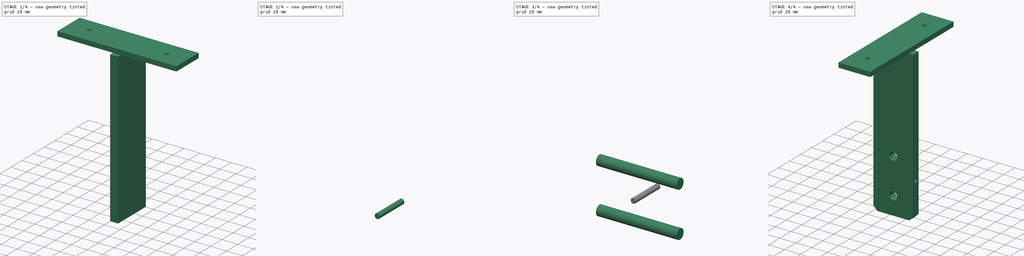
[diagram: build sequence overview — one tinted view per stage of 4, left to right]
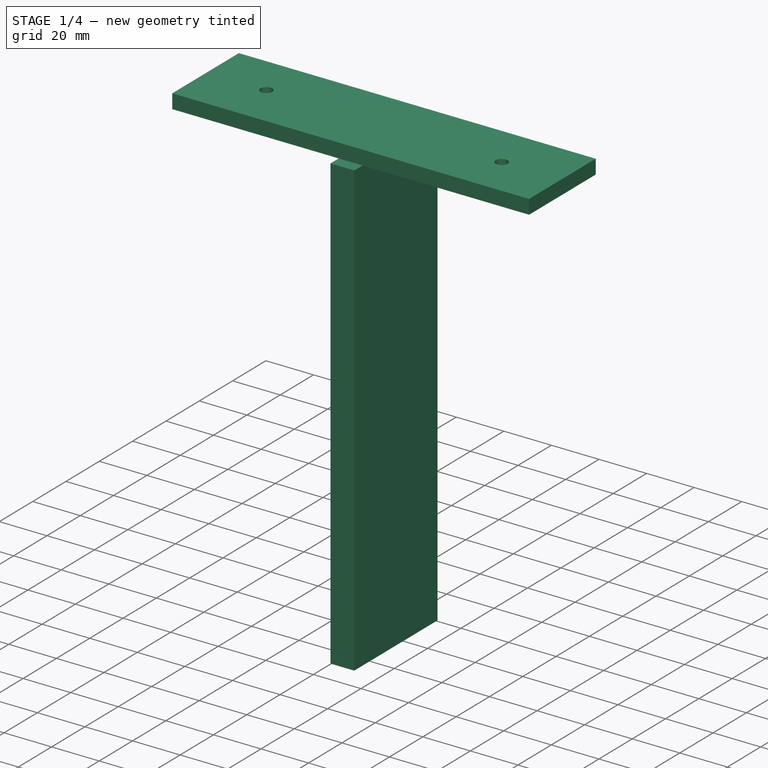
[diagram: stage 1 of 4 — iso view after this stage's code; geometry added in this stage tinted green]
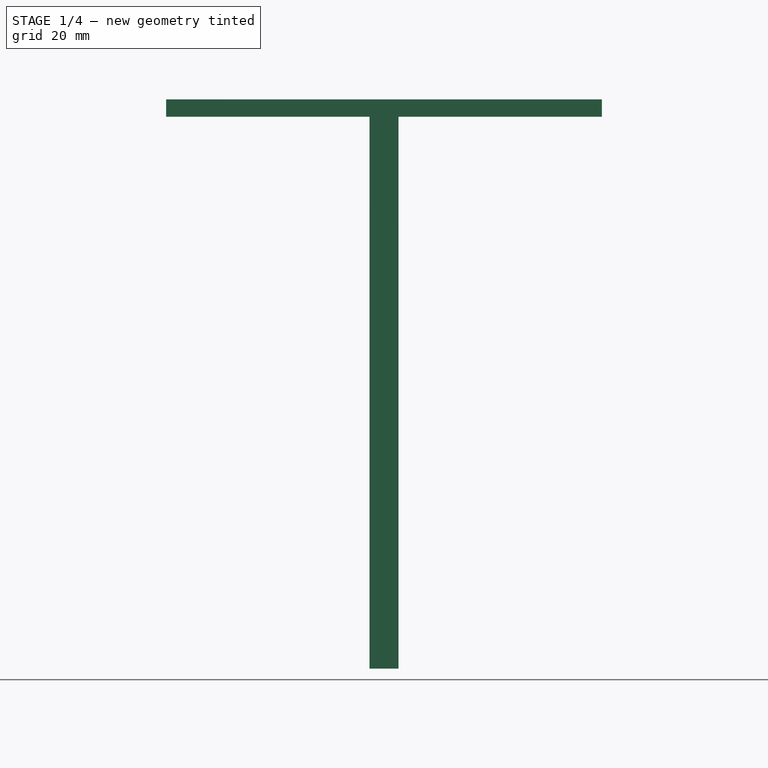
[diagram: stage 1 of 4 — front view after this stage's code; geometry added in this stage tinted green]
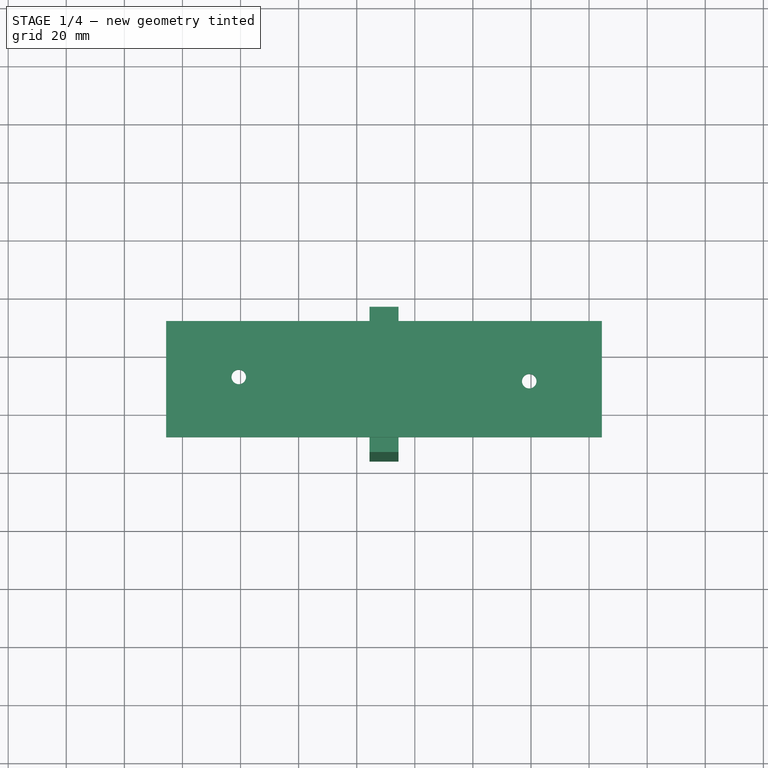
[diagram: stage 1 of 4 — top view after this stage's code; geometry added in this stage tinted green]
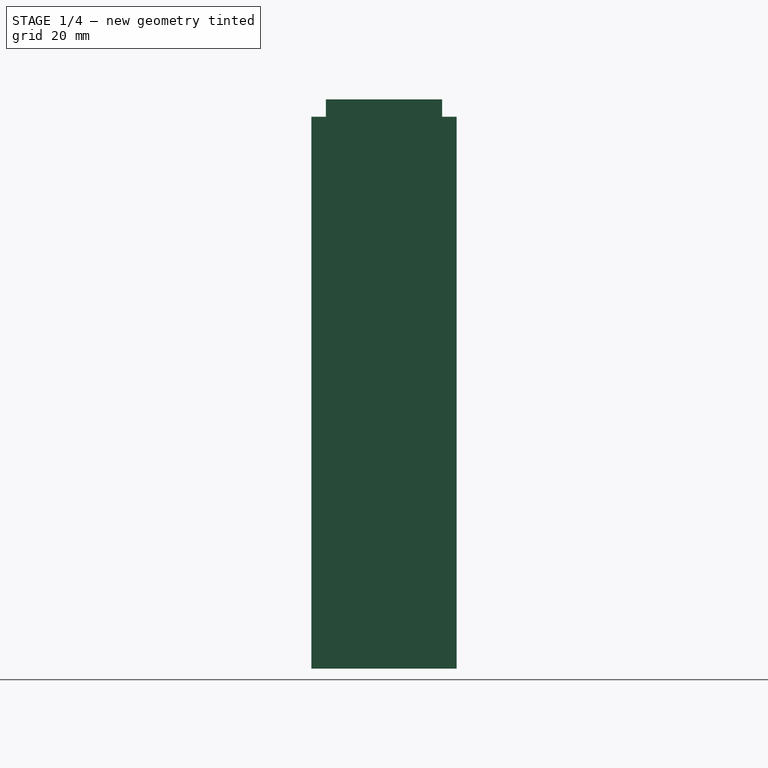
[diagram: stage 1 of 4 — right view after this stage's code; geometry added in this stage tinted green]
FCSTD DOCUMENT  (FreeCAD 0.17R11051 (Git))
Label: loft_handrail_holder
License: All rights reserved
LicenseURL: http://en.wikipedia.org/wiki/All_rights_reserved
objects: Part::Part2DObjectPython×3, Part::Extrusion×3, TechDraw::DrawProjGroupItem×3, Part::FeaturePython×2, Part::Compound×2, Part::Chamfer×1, Part::Cut×1, PartDesign::ShapeBinder×1, Sketcher::SketchObject×1, PartDesign::Pad×1, PartDesign::Body×1, TechDraw::DrawSVGTemplate×1, TechDraw::DrawProjGroup×1, TechDraw::DrawViewPart×1, TechDraw::DrawPage×1
note: 17 computed .brp shape members not serialized (recipe doc carries the construction recipe); baked Part::Feature solids carry a one-line shape summary decoded from their .brp

FEATURE [Part::Part2DObjectPython] Rectangle  # Draft 2D object (typed FeaturePython)
  ChamferSize = 0
  Columns = 1
  FilletRadius = 0
  Height = 10
  Length = 50
  MakeFace = true
  Placement = pos=(84.3902,-436,950) rot=(0.707107,0.707107,0;3.14159rad)
  Rows = 1
FEATURE [Part::Extrusion] Extrude007
  Base = -> Rectangle
  Dir = (0,0,1)
  DirMode = 0
  FaceMakerClass = Part::FaceMakerBullseye
  LengthFwd = 190
  LengthRev = 0
  Solid = false
  Symmetric = false
FEATURE [PartDesign::ShapeBinder] CopyCut003
  Placement = pos=(84.3902,-436,1140) rot=(0.707107,0.707107,0;3.14159rad)
FEATURE [Sketcher::SketchObject] Sketch
  ExternalGeometry = -> [CopyCut003]
  MapMode = 5
  Placement = pos=(84.3902,-436,1140) rot=(0,0,1;1.5708rad)
  Support = -> [CopyCut003]
  sketch-geometry (8):
    g0: LineSegment StartX=5 StartY=-80 StartZ=0 EndX=45 EndY=-80 EndZ=0
    g1: LineSegment StartX=45 StartY=-80 StartZ=0 EndX=45 EndY=70 EndZ=0
    g2: LineSegment StartX=45 StartY=70 StartZ=0 EndX=5 EndY=70 EndZ=0
    g3: LineSegment StartX=5 StartY=70 StartZ=0 EndX=5 EndY=-80 EndZ=0
    g4: LineSegment [constr] StartX=25 StartY=-5 StartZ=0 EndX=50 EndY=-5 EndZ=0
    g5: LineSegment [constr] StartX=25 StartY=-5 StartZ=0 EndX=0 EndY=-5 EndZ=0
    g6: Circle CenterX=25.7359 CenterY=45 CenterZ=0 NormalX=0 NormalY=0 NormalZ=1 Radius=2.5
    g7: Circle CenterX=24.2641 CenterY=-55 CenterZ=0 NormalX=0 NormalY=0 NormalZ=1 Radius=2.5
  constraints (22):
    c: Coincident(g0,g1)
    c: Coincident(g1,g2)
    c: Coincident(g2,g3)
    c: Coincident(g3,g0)
    c: Horizontal(g0)
    c: Horizontal(g2)
    c: Vertical(g1)
    c: Vertical(g3)
    c: DistanceY(g3,g3) = 150
    c: DistanceX(g2,g2) = 40
    c: PointOnObject(g4,g-6)
    c: Symmetric(g-6,g-6,g4)
    c: Symmetric(g0,g1,g4)
    c: Coincident(g5,g4)
    c: Horizontal(g5)
    c: PointOnObject(g5,g-4)
    c: Equal(g5,g4)
    c: Symmetric(g0,g2,g4)
    c: Symmetric(g6,g7,g4)
    c: Radius(g6) = 2.5
    c: Equal(g6,g7)
    c: DistanceY(g6,g1) = 25
FEATURE [PartDesign::Pad] Pad
  Length = 6
  Length2 = 100
  Placement = pos=(84.3902,-436,1140) rot=(0.707107,0.707107,0;3.14159rad)
  Profile = -> Sketch
  Type = 0
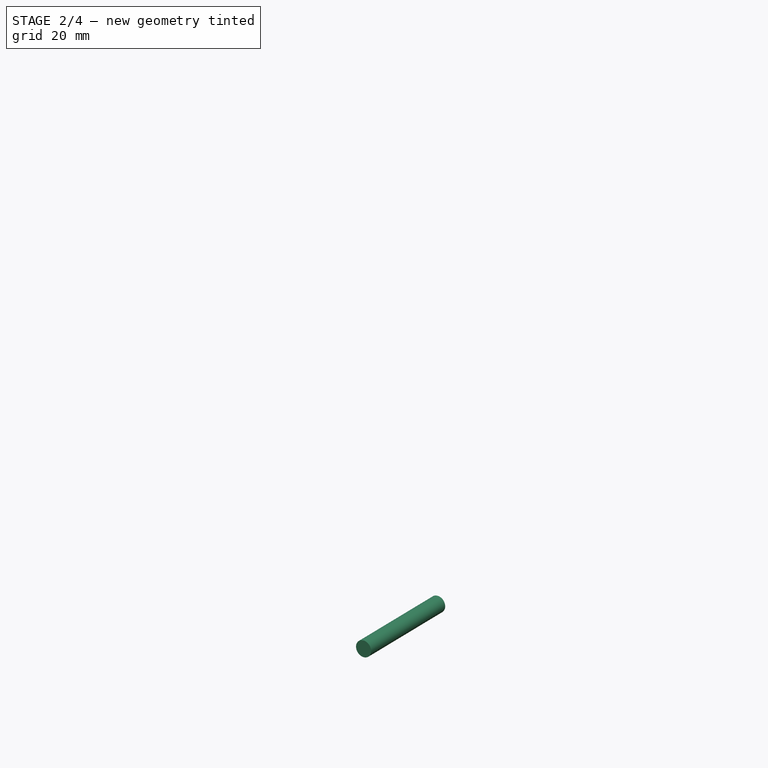
[diagram: stage 2 of 4 — iso view after this stage's code; geometry added in this stage tinted green]
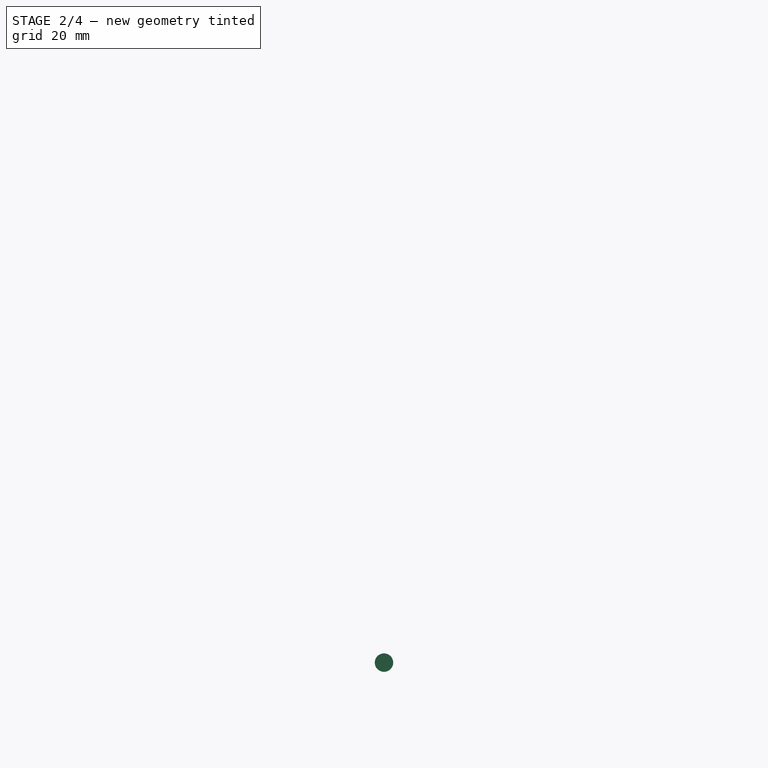
[diagram: stage 2 of 4 — front view after this stage's code; geometry added in this stage tinted green]
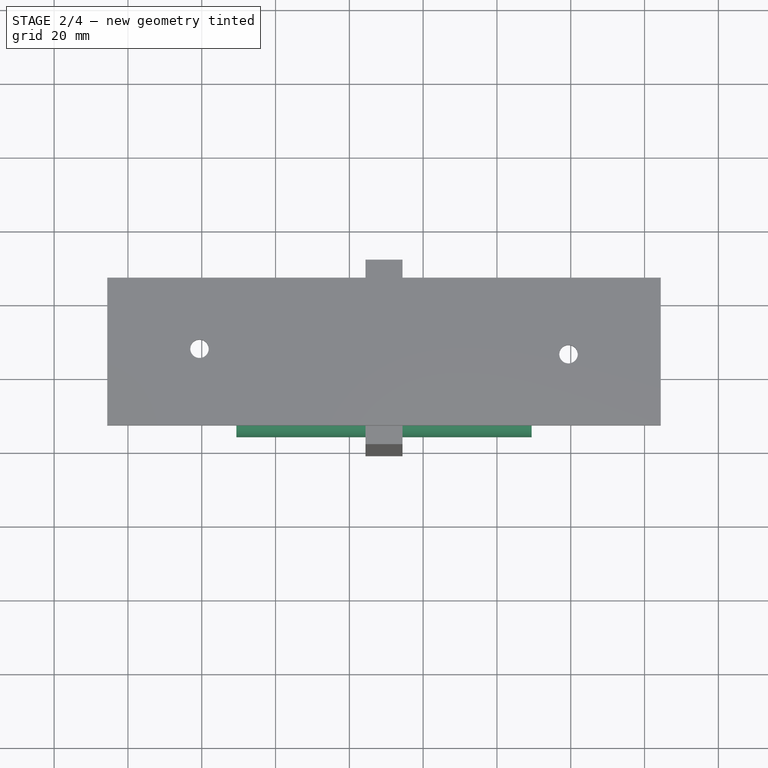
[diagram: stage 2 of 4 — top view after this stage's code; geometry added in this stage tinted green]
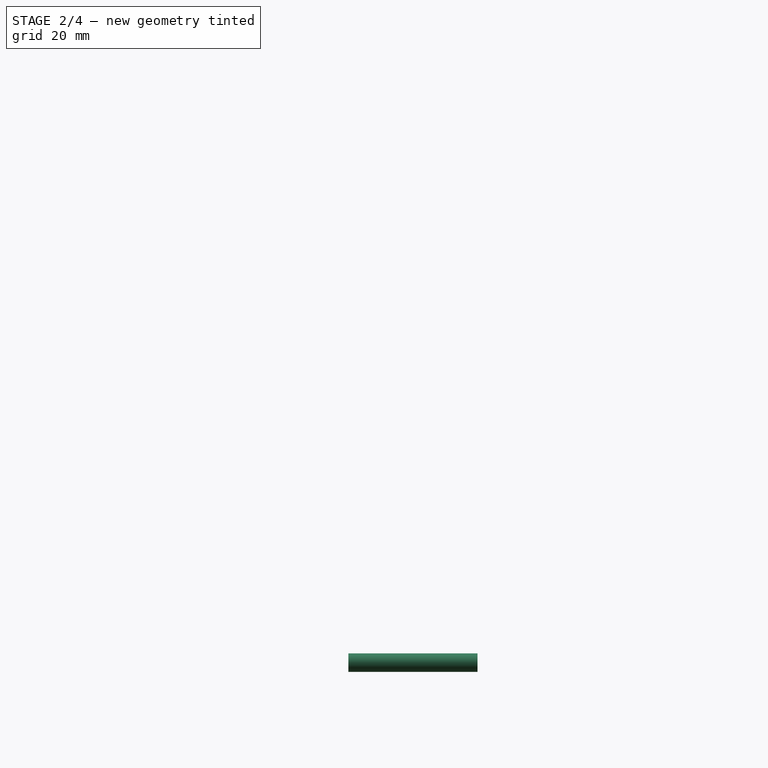
[diagram: stage 2 of 4 — right view after this stage's code; geometry added in this stage tinted green]
FEATURE [Part::Part2DObjectPython] Circle  # Draft 2D object (typed FeaturePython)
  FirstAngle = 0
  LastAngle = 0
  MakeFace = true
  Placement = pos=(64.3902,-411,100) rot=(0.57735,-0.57735,-0.57735;2.0944rad)
  Radius = 5
FEATURE [Part::Extrusion] Extrude
  Base = -> Circle
  Dir = (1,0,0)
  DirMode = 0
  FaceMakerClass = Part::FaceMakerBullseye
  LengthFwd = 80
  LengthRev = 0
  Placement = pos=(25,0,0) rot=(0,0,1;0rad)
  Solid = false
  Symmetric = true
FEATURE [Part::Part2DObjectPython] Circle003  # Draft 2D object (typed FeaturePython)
  FirstAngle = 0
  LastAngle = 0
  MakeFace = true
  Placement = pos=(89.3902,-420.3,545) rot=(1,0,0;1.5708rad)
  Radius = 2.5
FEATURE [Part::Extrusion] Extrude006
  Base = -> Circle003
  Dir = (0,1,0)
  DirMode = 0
  FaceMakerClass = Part::FaceMakerBullseye
  LengthFwd = 35
  LengthRev = 0
  Solid = false
  Symmetric = false
FEATURE [Part::FeaturePython] Array006  # Draft array (typed FeaturePython)
  Angle = 360
  ArrayType = 0
  Axis = (0,0,1)
  Base = -> Extrude006
  Center = (0,0,0)
  Fuse = false
  IntervalAxis = (0,0,0)
  IntervalX = (0,0,225)
  IntervalY = (0,0,0)
  IntervalZ = (0,0,0)
  NumberPolar = 1
  NumberX = 3
  NumberY = 0
  NumberZ = 1
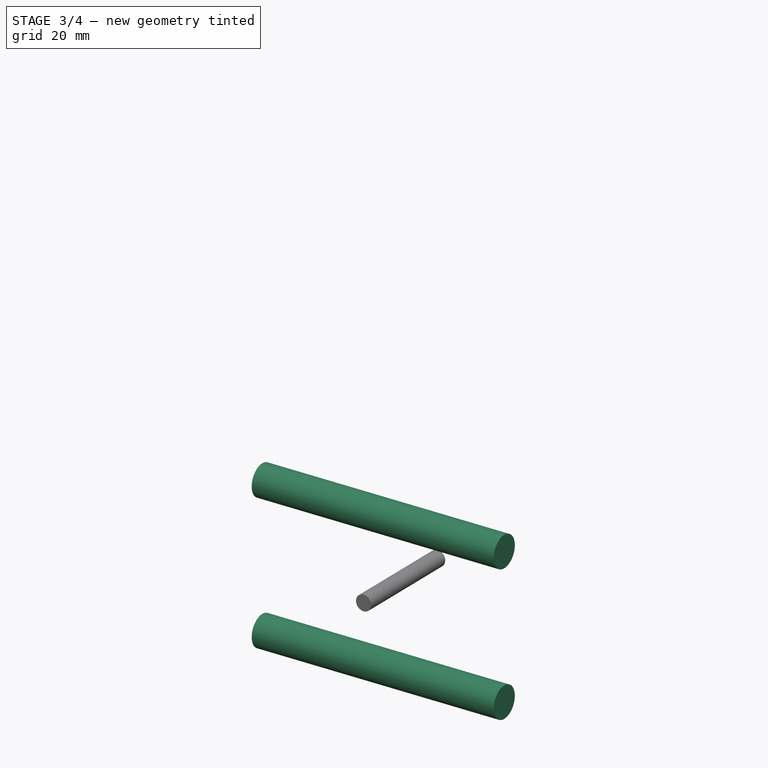
[diagram: stage 3 of 4 — iso view after this stage's code; geometry added in this stage tinted green]
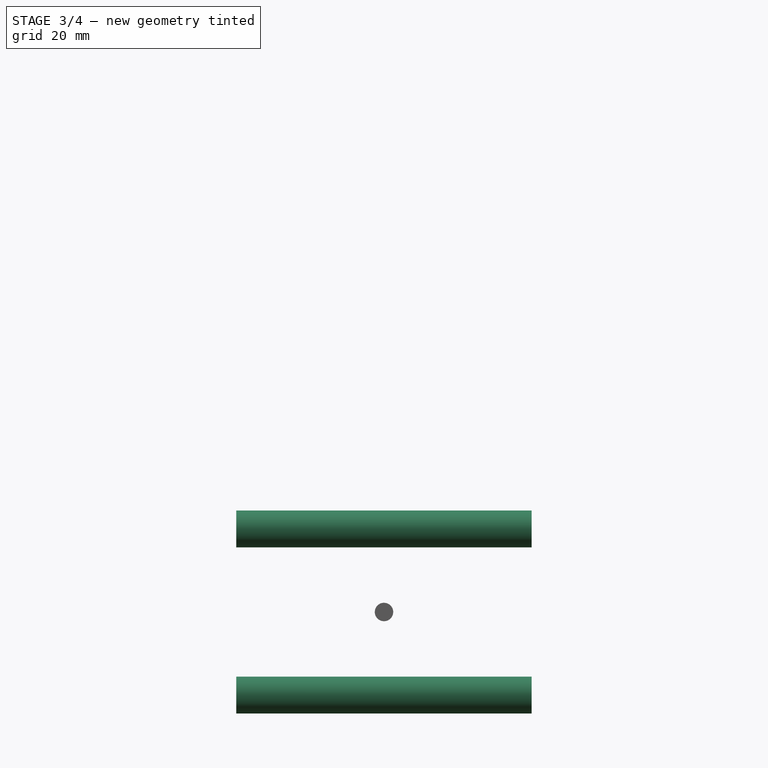
[diagram: stage 3 of 4 — front view after this stage's code; geometry added in this stage tinted green]
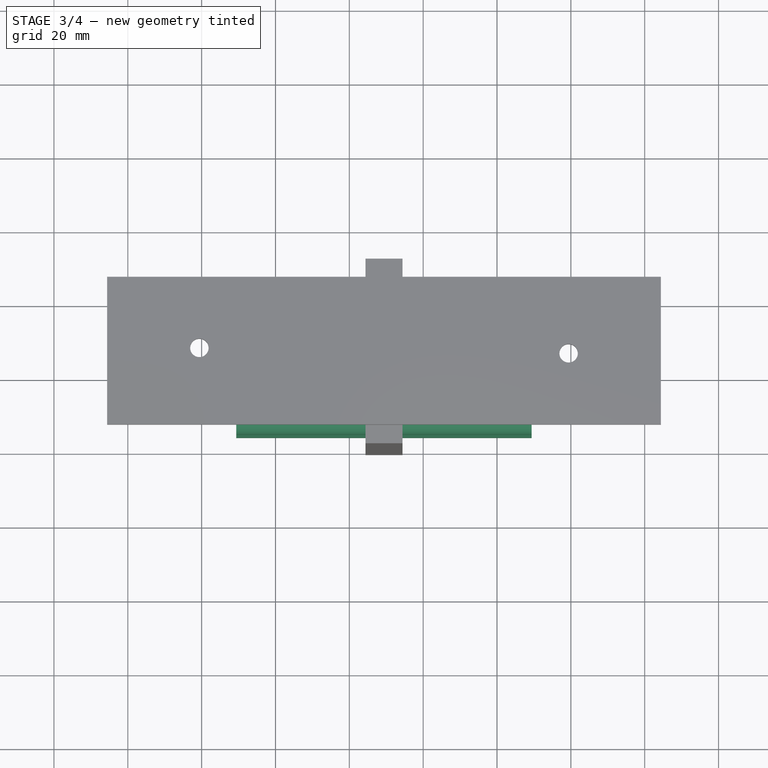
[diagram: stage 3 of 4 — top view after this stage's code; geometry added in this stage tinted green]
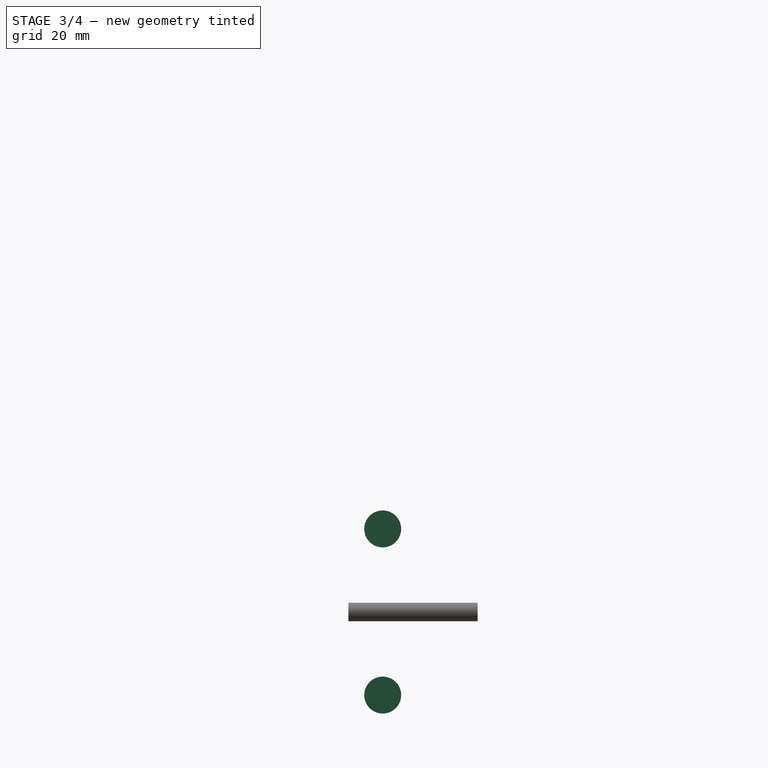
[diagram: stage 3 of 4 — right view after this stage's code; geometry added in this stage tinted green]
FEATURE [Part::FeaturePython] Array  # Draft array (typed FeaturePython)
  Angle = 360
  ArrayType = 0
  Axis = (0,0,1)
  Base = -> Extrude
  Center = (0,0,0)
  Fuse = false
  IntervalAxis = (0,0,0)
  IntervalX = (0,0,45)
  IntervalY = (0,0,225)
  IntervalZ = (0,0,0)
  NumberPolar = 1
  NumberX = 2
  NumberY = 5
  NumberZ = 1
  Placement = pos=(0,0,-27.5) rot=(0,0,1;0rad)
FEATURE [Part::Compound] Compound
  Links = -> [Array006,Array]
FEATURE [Part::Chamfer] Chamfer002
  Base = -> Extrude007
  Edges = 2 edges r=5: [Edge6,Edge11]
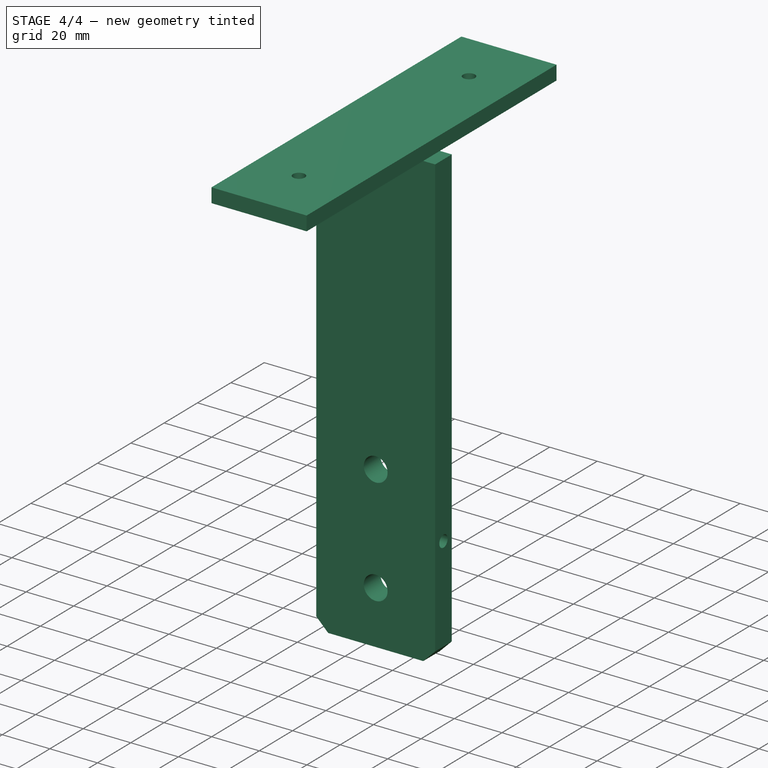
[diagram: stage 4 of 4 — iso view after this stage's code; geometry added in this stage tinted green]
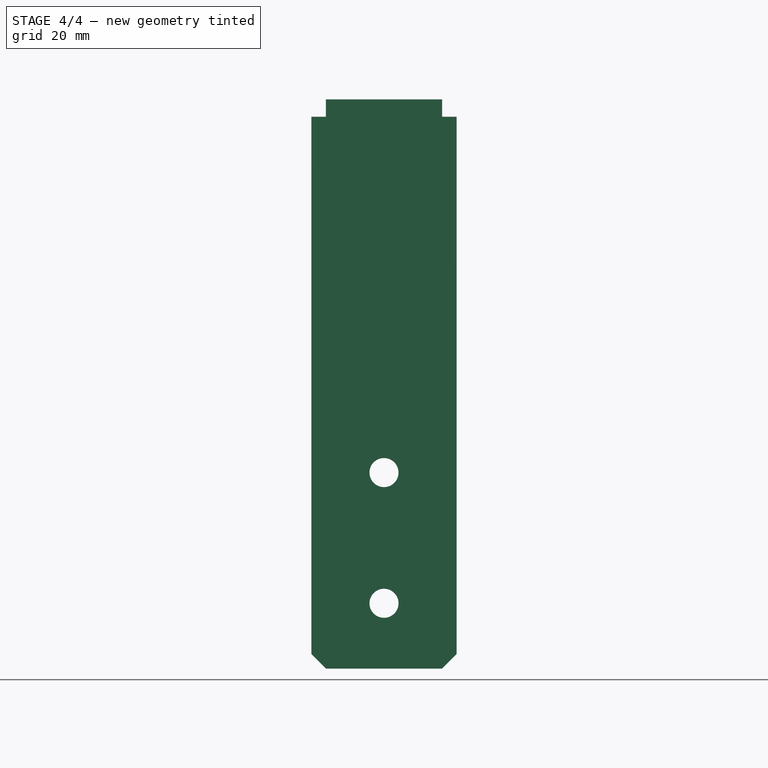
[diagram: stage 4 of 4 — front view after this stage's code; geometry added in this stage tinted green]
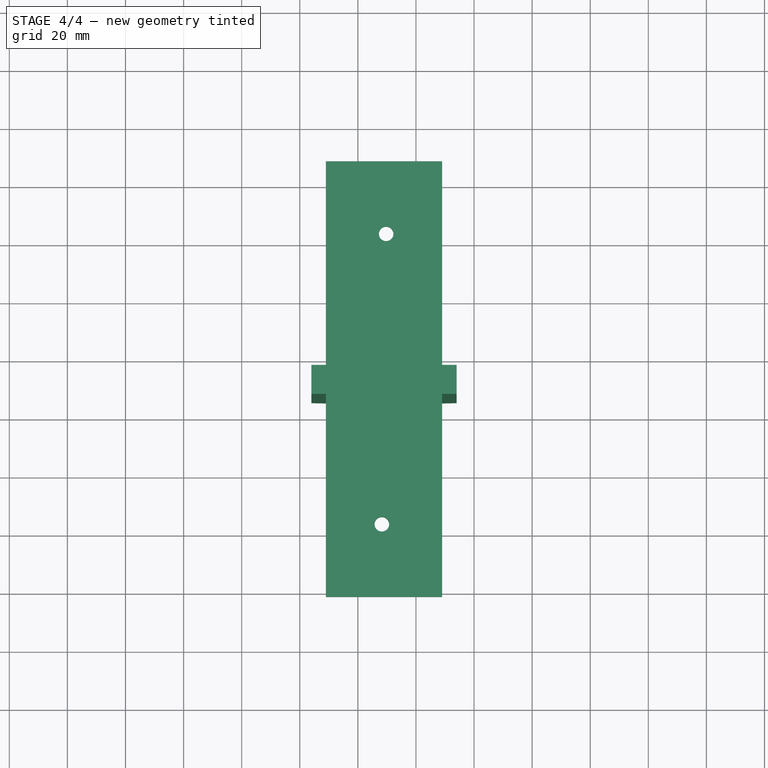
[diagram: stage 4 of 4 — top view after this stage's code; geometry added in this stage tinted green]
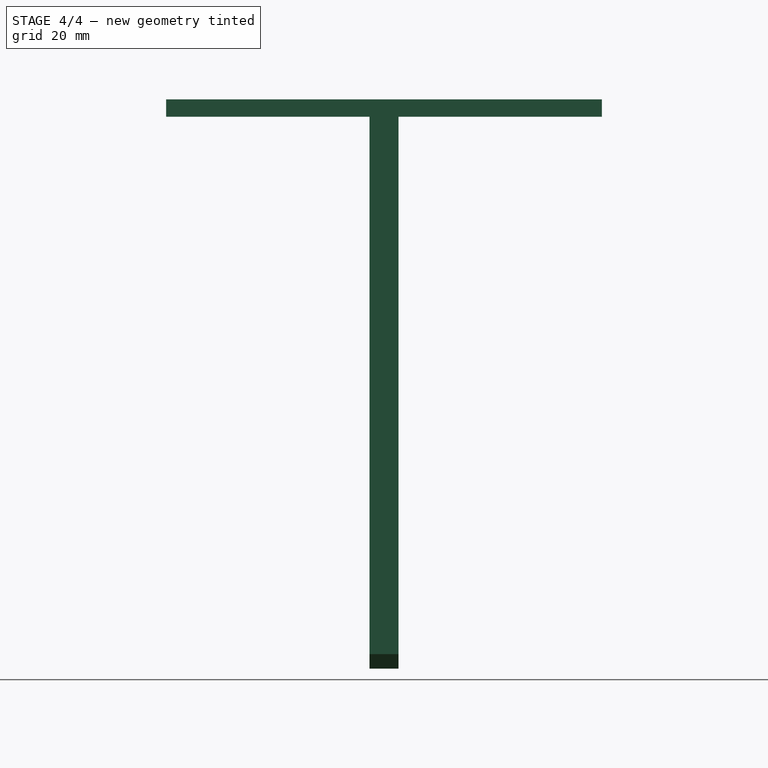
[diagram: stage 4 of 4 — right view after this stage's code; geometry added in this stage tinted green]
FEATURE [Part::Cut] Cut003
  Base = -> Chamfer002
  Tool = -> Compound
FEATURE [PartDesign::Body] Body
  Group = -> [CopyCut003,Sketch,Pad]
  Origin = -> BodyOrigin
  Tip = -> Pad
FEATURE [Part::Compound] Compound001
  Links = -> [Body,Cut003]
  Placement = pos=(0,0,0) rot=(0,0,-1;1.5708rad)
FEATURE [TechDraw::DrawSVGTemplate] Template
  Height = 420
  Orientation = 1
  Width = 594
FEATURE [TechDraw::DrawProjGroupItem] ProjItem  label="Front"
  ArcCenterMarks = true
  CenterScale = 2
  Direction = (-1,0,0)
  HardHidden = true
  HiddenWidth = 0.15
  HorizCenterLine = false
  IsoCount = 0
  IsoHidden = false
  IsoVisible = false
  IsoWidth = 0.3
  KeepLabel = false
  LineWidth = 0.3
  Rotation = 0
  RotationVector = (1,0,0)
  Scale = 0.2
  ScaleType = 2
  SeamHidden = false
  SeamVisible = false
  ShowSectionLine = true
  SmoothHidden = false
  SmoothVisible = false
  Source = -> Compound001
  Type = 0
  VertCenterLine = false
  X = 13.8853
  Y = 29.2766
FEATURE [TechDraw::DrawProjGroupItem] ProjItem001  label="Top"
  ArcCenterMarks = true
  CenterScale = 2
  Direction = (0,0,1)
  HardHidden = true
  HiddenWidth = 0.15
  HorizCenterLine = false
  IsoCount = 0
  IsoHidden = false
  IsoVisible = false
  IsoWidth = 0.3
  KeepLabel = false
  LineWidth = 0.3
  Rotation = 0
  RotationVector = (0,1,0)
  Scale = 0.2
  ScaleType = 2
  SeamHidden = false
  SeamVisible = false
  ShowSectionLine = true
  SmoothHidden = false
  SmoothVisible = false
  Source = -> Compound001
  Type = 4
  VertCenterLine = false
  X = 0
  Y = -39.2
FEATURE [TechDraw::DrawProjGroupItem] ProjItem002  label="Left"
  ArcCenterMarks = true
  CenterScale = 2
  Direction = (0,1,0)
  HardHidden = true
  HiddenWidth = 0.15
  HorizCenterLine = false
  IsoCount = 0
  IsoHidden = false
  IsoVisible = false
  IsoWidth = 0.3
  KeepLabel = false
  LineWidth = 0.3
  Rotation = 0
  RotationVector = (-1,0,0)
  Scale = 0.2
  ScaleType = 2
  SeamHidden = false
  SeamVisible = false
  ShowSectionLine = true
  SmoothHidden = false
  SmoothVisible = false
  Source = -> Compound001
  Type = 1
  VertCenterLine = false
  X = 30
  Y = 0
FEATURE [TechDraw::DrawProjGroup] ProjGroup
  Anchor = -> ProjItem
  AutoDistribute = true
  KeepLabel = false
  ProjectionType = 0
  Rotation = 0
  Scale = 0.2
  ScaleType = 2
  Source = -> Compound001
  Views = -> [ProjItem,ProjItem001,ProjItem002]
  X = 297
  Y = 210
  spacingX = 0
  spacingY = 0
FEATURE [TechDraw::DrawViewPart] View
  ArcCenterMarks = true
  CenterScale = 2
  Direction = (-1,0.5,1)
  HardHidden = true
  HiddenWidth = 0.15
  HorizCenterLine = false
  IsoCount = 0
  IsoHidden = false
  IsoVisible = false
  IsoWidth = 0.3
  KeepLabel = false
  LineWidth = 0.3
  Rotation = 0
  Scale = 0.2
  ScaleType = 2
  SeamHidden = false
  SeamVisible = false
  ShowSectionLine = true
  SmoothHidden = false
  SmoothVisible = false
  Source = -> Compound001
  VertCenterLine = false
  X = 359.559
  Y = 166.414
FEATURE [TechDraw::DrawPage] Page
  ProjectionType = 0
  Template = -> Template
  Views = -> [ProjGroup,View]
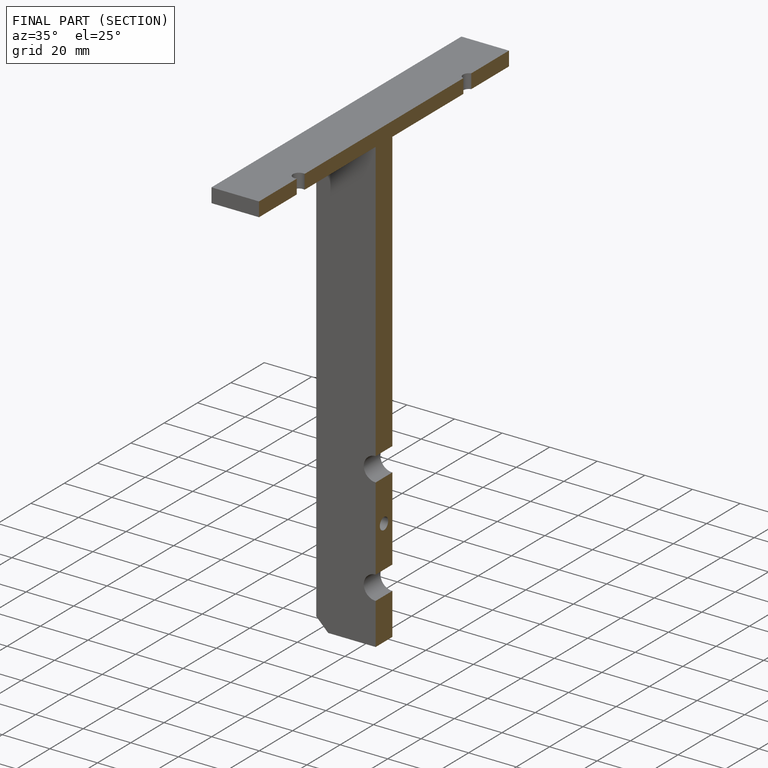
[diagram: finished part — half-section view (interior)]
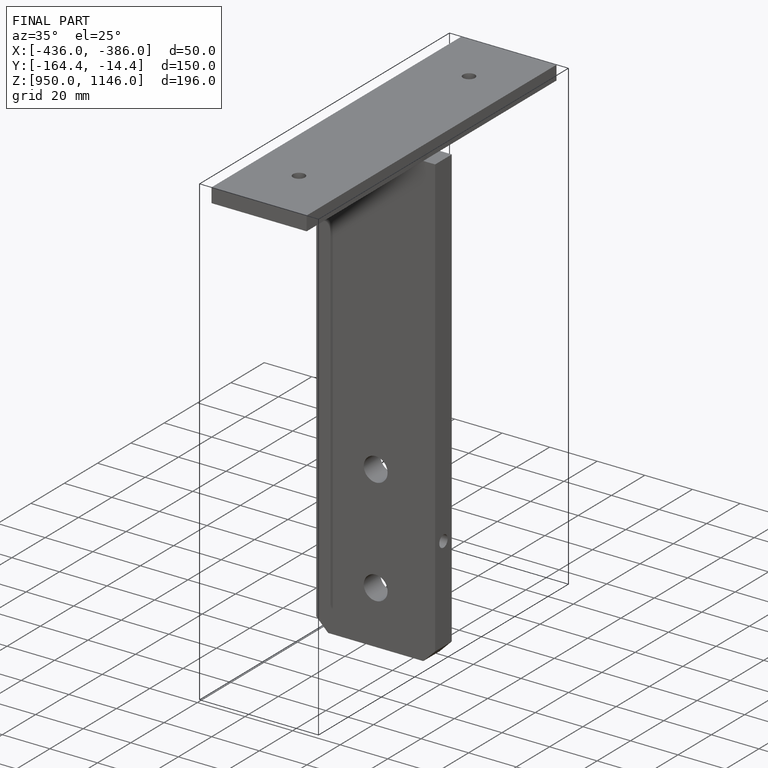
[diagram: finished part — iso view with bounding-box wireframe]
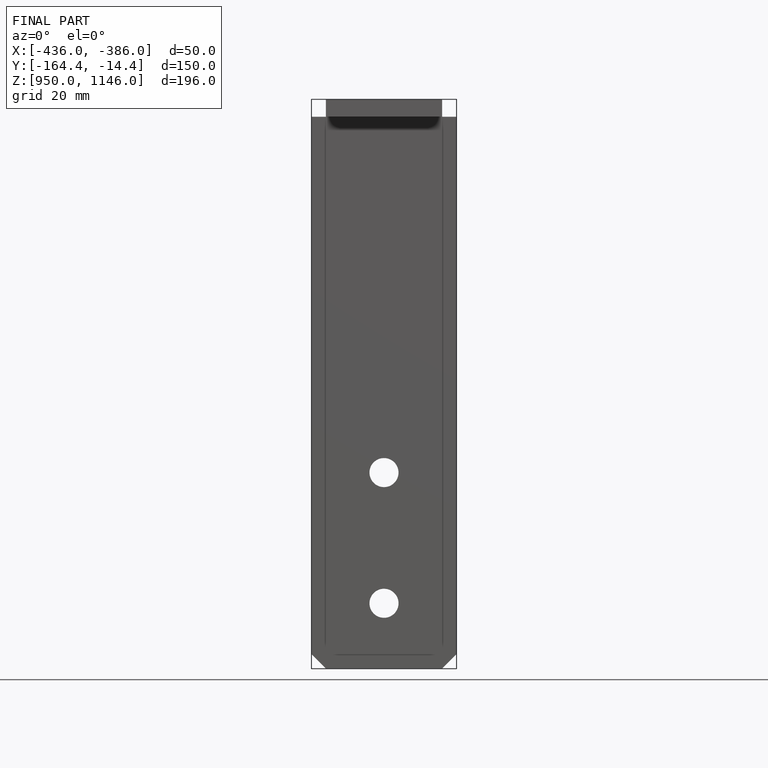
[diagram: finished part — front view with bounding-box wireframe]
